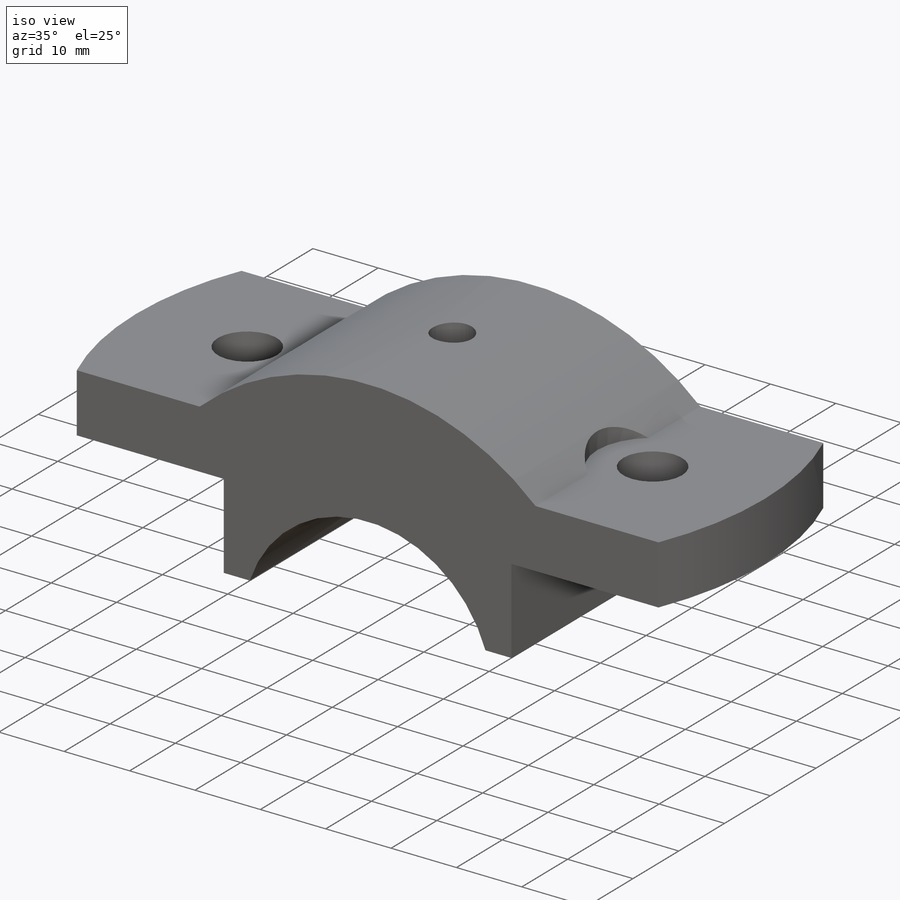
[diagram: iso view]
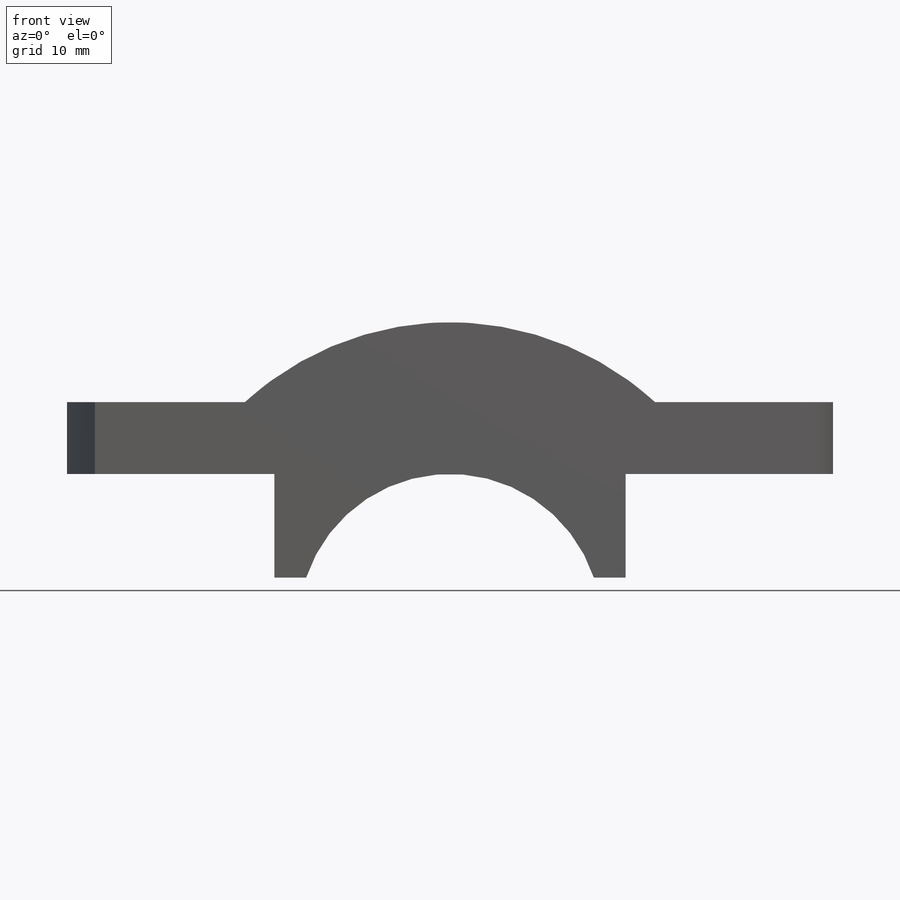
[diagram: front view]
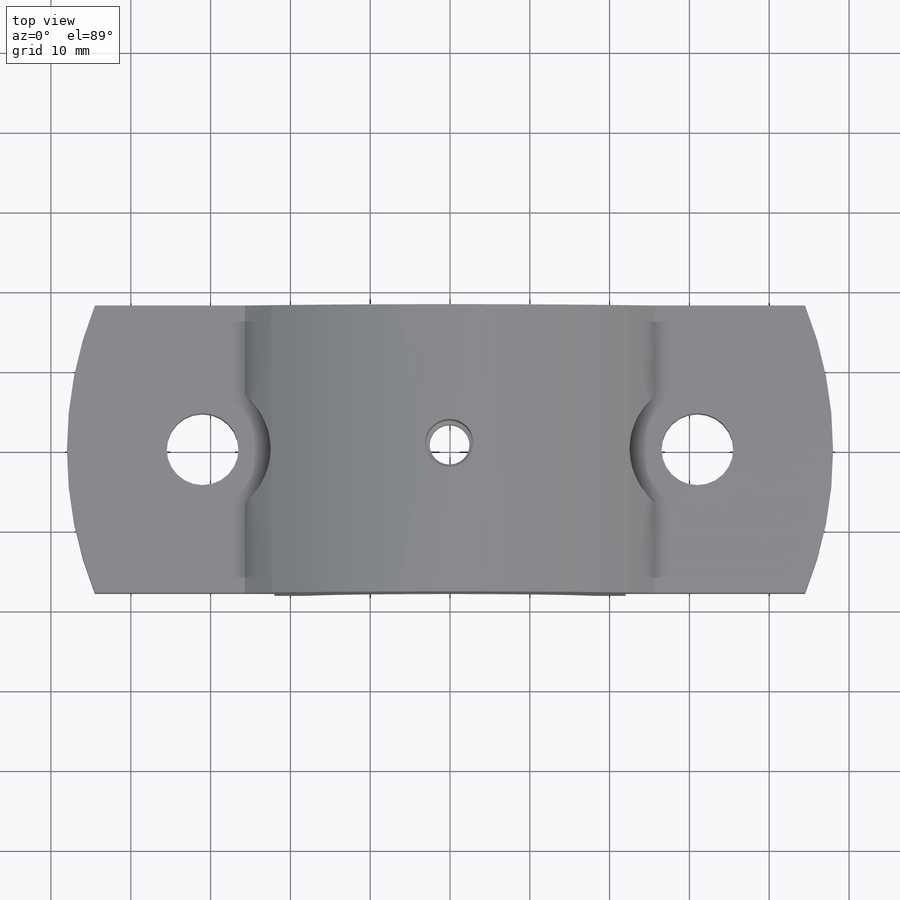
[diagram: top view]
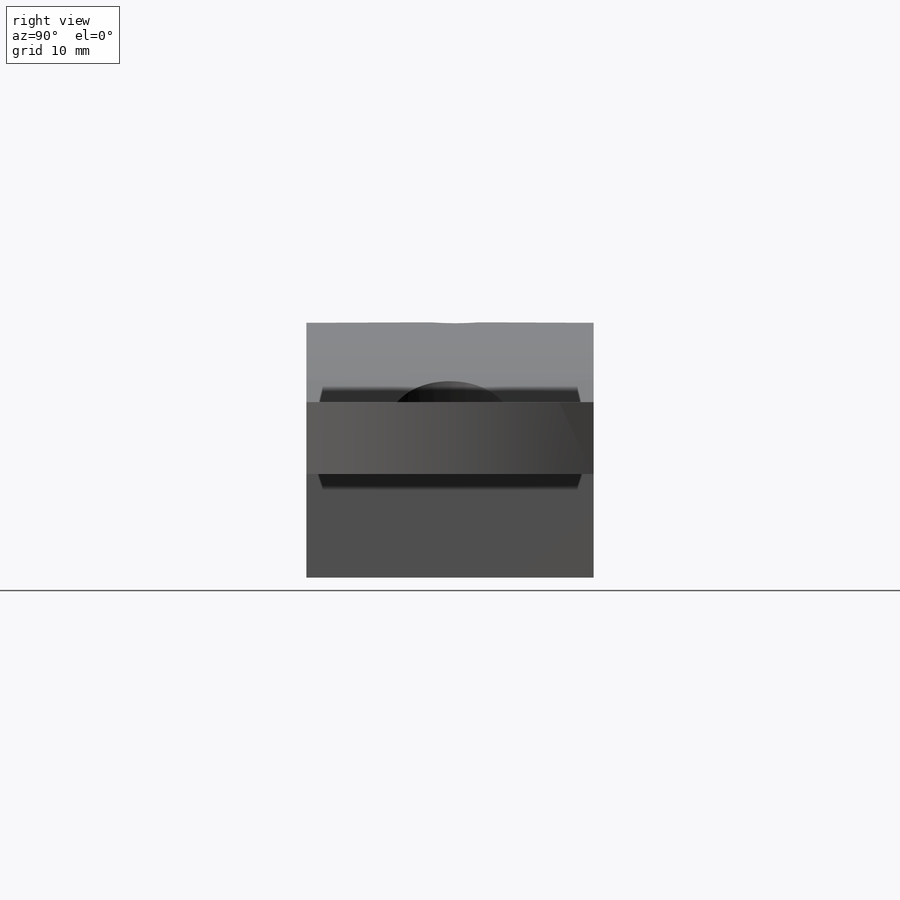
[diagram: right view]
SOLIDWORKS PART (.sldprt)
format: sldprt  version: not decoded by parser v0  size: 267,776 bytes
history: native  units: mm
features: sketch x7, hole x2, cut_extrude x2, mirror x2, material x1, extrude x1 (+12 scaffold rows collapsed)
feature tree (27):
  scaffold x12  (default folders/planes/origin — collapsed)
  material  "Material <not specified>"
  sketch  "Sketch1"  dims[c1.D1=19.0mm c1.D4=38.0mm c1.D2=44.0mm c1.D3=100.0mm c2.D4=22.0mm c2.D5=9.0mm c2.D6=13.0mm c2.D7=6.0mm]
  extrude  "Boss-Extrude1"  Depth=36mm
  hole  "Ø8.0mm Dowel Hole1"  Diameter=9mm Depth=22mm
  sketch  "Sketch3"  dims[D1=31.0mm]
  sketch  "Sketch2"  dims[hole-wizard template sketch: 60 standard entries collapsed; hole parameters kept: c18.Thru Hole Depth=22.0mm]
  sketch  "Sketch6"  dims[D1=96.0mm D2=~5.502809mm]
  cut_extrude  "Cut-Extrude3"  Depth=35mm
  sketch  "Sketch9"  dims[D1=8.5mm]
  cut_extrude  "Cut-Extrude4"  Depth=3mm
  mirror  "Mirror3"
  mirror  "Mirror4"
  hole  "CBORE for M5 Hex Head Bolt2"  Diameter=5mm Depth=32.113845mm
  sketch  "3DSketch1"
  sketch  "Sketch10"  dims[hole-wizard template sketch: 42 standard entries collapsed; hole parameters kept: c12.Thru Hole Depth=~32.113845mm c12.C'Bore Dia.=6.0mm c12.C'Bore Depth=13.0mm c12.Mid C'Sink Dia.=5.999mm c12.D6=~5.388154mm c12.Mid C'Sink Angle=118.0deg]
decode coverage: 11 of 14 modeling features carry decoded parameters
note: ~ marks probable driven/reference dimensions
note: suppression state not decoded; provenance and decode notes live in map.json
